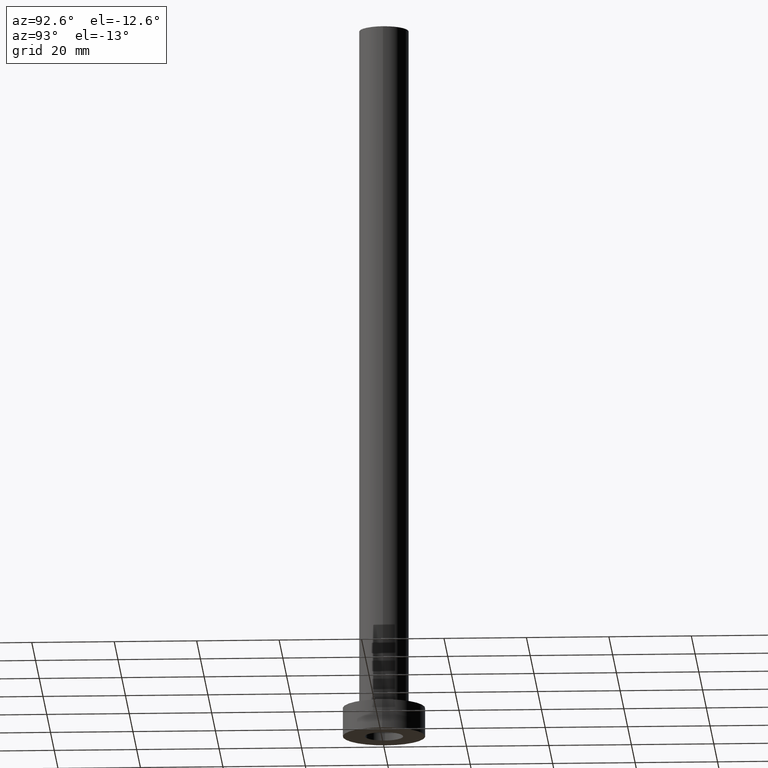
[diagram: clean part render]
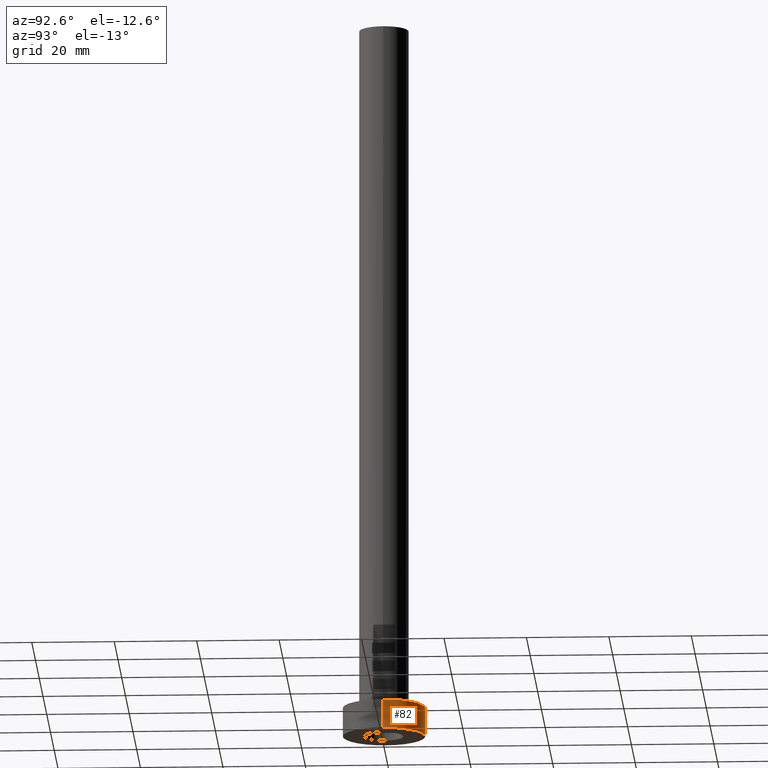
[diagram: same view with one face highlighted and labeled with its STEP entity id]
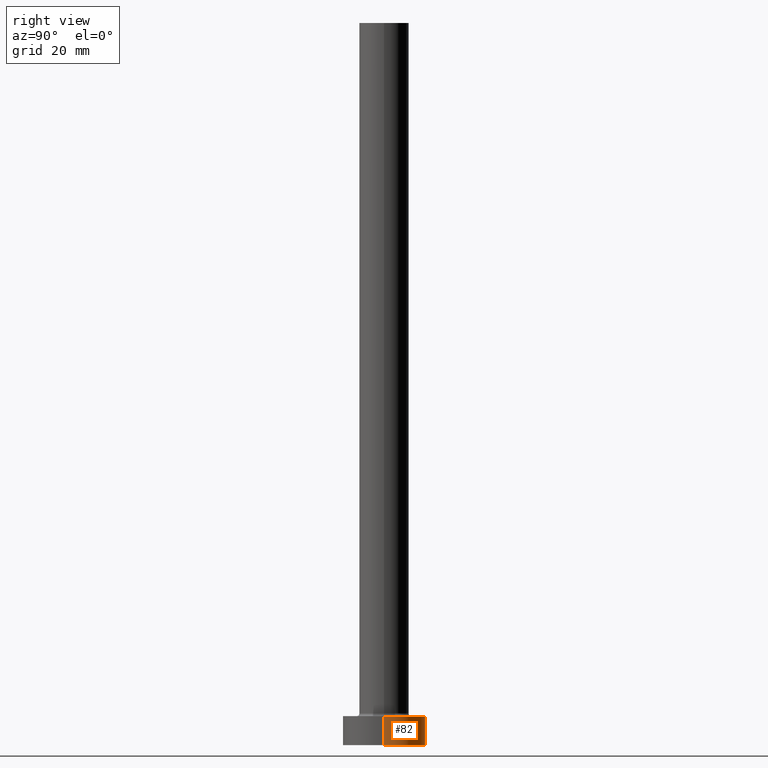
[diagram: same view with one face highlighted and labeled with its STEP entity id]
A machine part, auxiliary view. The second image highlights one B-rep face of the part: STEP entity #82.
A second angle (right view) of the same face is appended — the face is thin or edge-on in the first view.
In plain terms, the highlighted cylindrical surface (partial cylindrical patch) has radius 10 mm, axis along (-0, -0, -1).
Its self-contained STEP definition (entity closure, byte-faithful):
#5 = CARTESIAN_POINT ( 'NONE',  ( 0.000000000000000000, 0.000000000000000000, 0.000000000000000000 ) ) ;
#13 = DIRECTION ( 'NONE',  ( 0.000000000000000000, 0.000000000000000000, 1.000000000000000000 ) ) ;
#28 = EDGE_CURVE ( 'NONE', #365, #199, #169, .T. ) ;
#39 = EDGE_CURVE ( 'NONE', #91, #362, #405, .T. ) ;
#40 = DIRECTION ( 'NONE',  ( 1.000000000000000000, 0.000000000000000000, 0.000000000000000000 ) ) ;
#52 = CARTESIAN_POINT ( 'NONE',  ( 10.00000000000000000, 1.224646799147353256E-15, 7.000000000000000000 ) ) ;
#75 = VECTOR ( 'NONE', #94, 1000.000000000000000 ) ;
#82 = ADVANCED_FACE ( 'NONE', ( #174 ), #141, .T. ) ;
#84 = CARTESIAN_POINT ( 'NONE',  ( -10.00000000000000000, 0.000000000000000000, 7.000000000000000000 ) ) ;
#91 = VERTEX_POINT ( 'NONE', #139 ) ;
#94 = DIRECTION ( 'NONE',  ( -0.000000000000000000, -0.000000000000000000, -1.000000000000000000 ) ) ;
#122 = AXIS2_PLACEMENT_3D ( 'NONE', #220, #160, #290 ) ;
#126 = CARTESIAN_POINT ( 'NONE',  ( -10.00000000000000000, 0.000000000000000000, 0.000000000000000000 ) ) ;
#139 = CARTESIAN_POINT ( 'NONE',  ( -10.00000000000000000, 0.000000000000000000, 7.000000000000000000 ) ) ;
#141 = CYLINDRICAL_SURFACE ( 'NONE', #172, 10.00000000000000000 ) ;
#145 = DIRECTION ( 'NONE',  ( -0.000000000000000000, -0.000000000000000000, -1.000000000000000000 ) ) ;
#160 = DIRECTION ( 'NONE',  ( 0.000000000000000000, 0.000000000000000000, 1.000000000000000000 ) ) ;
#169 = LINE ( 'NONE', #340, #201 ) ;
#172 = AXIS2_PLACEMENT_3D ( 'NONE', #176, #145, #358 ) ;
#174 = FACE_OUTER_BOUND ( 'NONE', #392, .T. ) ;
#176 = CARTESIAN_POINT ( 'NONE',  ( 0.000000000000000000, 0.000000000000000000, 7.000000000000000000 ) ) ;
#192 = ORIENTED_EDGE ( 'NONE', *, *, #39, .F. ) ;
#199 = VERTEX_POINT ( 'NONE', #420 ) ;
#201 = VECTOR ( 'NONE', #270, 1000.000000000000000 ) ;
#207 = ORIENTED_EDGE ( 'NONE', *, *, #28, .T. ) ;
#220 = CARTESIAN_POINT ( 'NONE',  ( 0.000000000000000000, 0.000000000000000000, 7.000000000000000000 ) ) ;
#242 = AXIS2_PLACEMENT_3D ( 'NONE', #5, #13, #40 ) ;
#253 = EDGE_CURVE ( 'NONE', #365, #91, #360, .T. ) ;
#268 = ORIENTED_EDGE ( 'NONE', *, *, #253, .F. ) ;
#270 = DIRECTION ( 'NONE',  ( -0.000000000000000000, -0.000000000000000000, -1.000000000000000000 ) ) ;
#290 = DIRECTION ( 'NONE',  ( 1.000000000000000000, 0.000000000000000000, 0.000000000000000000 ) ) ;
#339 = EDGE_CURVE ( 'NONE', #199, #362, #391, .T. ) ;
#340 = CARTESIAN_POINT ( 'NONE',  ( 10.00000000000000000, 1.224646799147353256E-15, 7.000000000000000000 ) ) ;
#358 = DIRECTION ( 'NONE',  ( -1.000000000000000000, 0.000000000000000000, 0.000000000000000000 ) ) ;
#360 = CIRCLE ( 'NONE', #122, 10.00000000000000000 ) ;
#362 = VERTEX_POINT ( 'NONE', #126 ) ;
#365 = VERTEX_POINT ( 'NONE', #52 ) ;
#379 = ORIENTED_EDGE ( 'NONE', *, *, #339, .T. ) ;
#391 = CIRCLE ( 'NONE', #242, 10.00000000000000000 ) ;
#392 = EDGE_LOOP ( 'NONE', ( #268, #207, #379, #192 ) ) ;
#405 = LINE ( 'NONE', #84, #75 ) ;
#420 = CARTESIAN_POINT ( 'NONE',  ( 10.00000000000000000, 1.224646799147353256E-15, 0.000000000000000000 ) ) ;